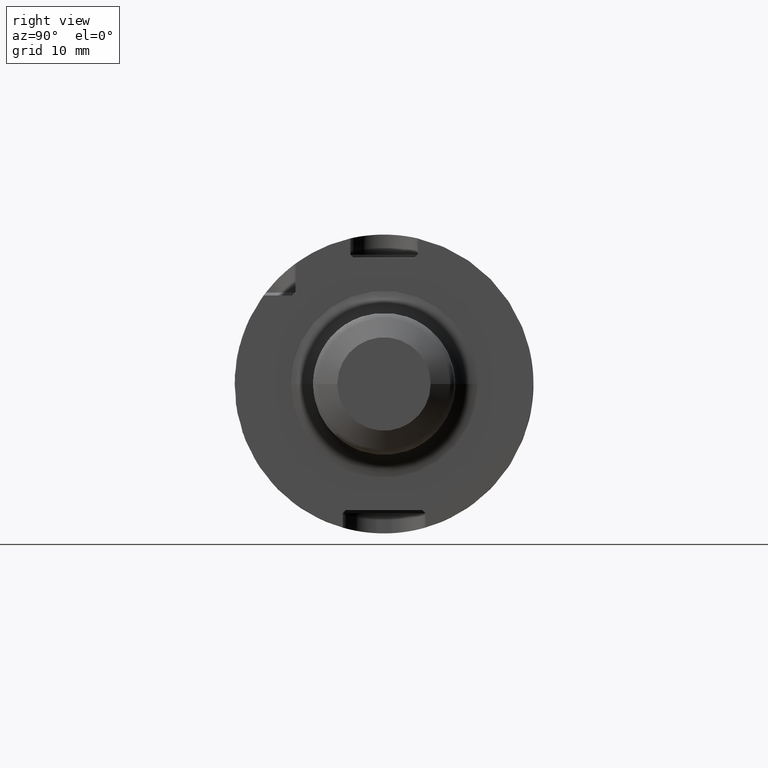
[diagram: clean part render]
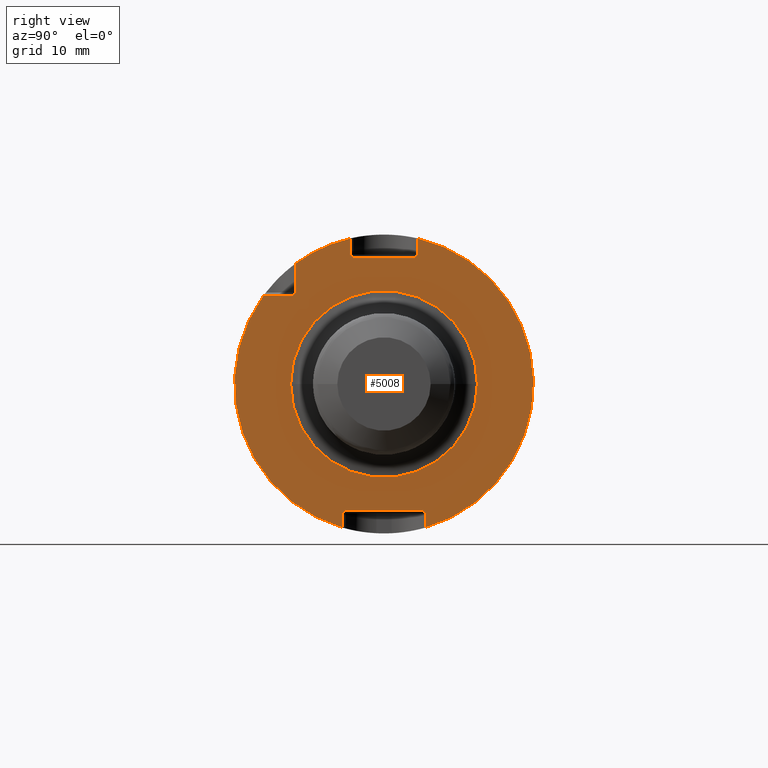
[diagram: same view with one face highlighted and labeled with its STEP entity id]
A machine part, right view. The second image highlights one B-rep face of the part: STEP entity #5008.
In plain terms, the highlighted planar face has unit normal (1, 0, 0).
Its self-contained STEP definition (entity closure, byte-faithful):
#994=CARTESIAN_POINT('',(1.995E1,0.E0,0.E0));
#995=DIRECTION('',(1.E0,0.E0,0.E0));
#996=DIRECTION('',(0.E0,-2.25725E-1,9.741910615352E-1));
#997=AXIS2_PLACEMENT_3D('',#994,#995,#996);
#1003=CARTESIAN_POINT('',(1.995E1,0.E0,0.E0));
#1004=DIRECTION('',(1.E0,0.E0,0.E0));
#1005=DIRECTION('',(0.E0,-8.055704500539E-1,5.925E-1));
#1006=AXIS2_PLACEMENT_3D('',#1003,#1004,#1005);
#1030=CARTESIAN_POINT('',(1.995E1,0.E0,0.E0));
#1031=DIRECTION('',(1.E0,0.E0,0.E0));
#1032=DIRECTION('',(0.E0,2.75875E-1,-9.611935207725E-1));
#1033=AXIS2_PLACEMENT_3D('',#1030,#1031,#1032);
#1211=DIRECTION('',(0.E0,-7.071067811865E-1,7.071067811865E-1));
#1212=VECTOR('',#1211,5.656854249492E-1);
#1213=CARTESIAN_POINT('',(1.995E1,-4.1145E0,1.69E1));
#1214=LINE('',#1213,#1212);
#1368=DIRECTION('',(0.E0,7.071067811865E-1,-7.071067811865E-1));
#1369=VECTOR('',#1368,5.656854249492E-1);
#1370=CARTESIAN_POINT('',(1.995E1,5.1175E0,-1.69E1));
#1371=LINE('',#1370,#1369);
#1474=DIRECTION('',(0.E0,-7.071067811865E-1,-7.071067811865E-1));
#1475=VECTOR('',#1474,5.656854249492E-1);
#1476=CARTESIAN_POINT('',(1.995E1,4.5145E0,1.73E1));
#1477=LINE('',#1476,#1475);
#1641=DIRECTION('',(0.E0,1.E0,0.E0));
#1642=VECTOR('',#1641,3.861409001077E0);
#1643=CARTESIAN_POINT('',(1.995E1,-1.611140900108E1,1.185E1));
#1644=LINE('',#1643,#1642);
#1645=DIRECTION('',(0.E0,0.E0,-1.E0));
#1646=VECTOR('',#1645,3.861409001077E0);
#1647=CARTESIAN_POINT('',(1.995E1,-1.185E1,1.611140900108E1));
#1648=LINE('',#1647,#1646);
#1649=DIRECTION('',(0.E0,0.E0,-1.E0));
#1650=VECTOR('',#1649,2.183821230703E0);
#1651=CARTESIAN_POINT('',(1.995E1,-4.5145E0,1.948382123070E1));
#1652=LINE('',#1651,#1650);
#1653=DIRECTION('',(0.E0,1.E0,0.E0));
#1654=VECTOR('',#1653,8.229E0);
#1655=CARTESIAN_POINT('',(1.995E1,-4.1145E0,1.69E1));
#1656=LINE('',#1655,#1654);
#1657=DIRECTION('',(0.E0,0.E0,-1.E0));
#1658=VECTOR('',#1657,2.183821230703E0);
#1659=CARTESIAN_POINT('',(1.995E1,4.5145E0,1.948382123070E1));
#1660=LINE('',#1659,#1658);
#1661=DIRECTION('',(0.E0,0.E0,1.E0));
#1662=VECTOR('',#1661,1.923870415450E0);
#1663=CARTESIAN_POINT('',(1.995E1,5.5175E0,-1.922387041545E1));
#1664=LINE('',#1663,#1662);
#1665=DIRECTION('',(0.E0,-1.E0,0.E0));
#1666=VECTOR('',#1665,1.0235E1);
#1667=CARTESIAN_POINT('',(1.995E1,5.1175E0,-1.69E1));
#1668=LINE('',#1667,#1666);
#1669=DIRECTION('',(0.E0,0.E0,1.E0));
#1670=VECTOR('',#1669,1.923870415450E0);
#1671=CARTESIAN_POINT('',(1.995E1,-5.5175E0,-1.922387041545E1));
#1672=LINE('',#1671,#1670);
#1673=CARTESIAN_POINT('',(1.995E1,0.E0,0.E0));
#1674=DIRECTION('',(1.E0,0.E0,0.E0));
#1675=DIRECTION('',(0.E0,-1.E0,0.E0));
#1676=AXIS2_PLACEMENT_3D('',#1673,#1674,#1675);
#1678=CARTESIAN_POINT('',(1.995E1,0.E0,0.E0));
#1679=DIRECTION('',(1.E0,0.E0,0.E0));
#1680=DIRECTION('',(0.E0,1.E0,0.E0));
#1681=AXIS2_PLACEMENT_3D('',#1678,#1679,#1680);
#1753=DIRECTION('',(0.E0,-7.071067811865E-1,-7.071067811865E-1));
#1754=VECTOR('',#1753,5.656854249492E-1);
#1755=CARTESIAN_POINT('',(1.995E1,-1.185E1,1.225E1));
#1756=LINE('',#1755,#1754);
#1769=DIRECTION('',(0.E0,7.071067811865E-1,7.071067811865E-1));
#1770=VECTOR('',#1769,5.656854249492E-1);
#1771=CARTESIAN_POINT('',(1.995E1,-5.5175E0,-1.73E1));
#1772=LINE('',#1771,#1770);
#3032=CARTESIAN_POINT('',(1.995E1,-4.1145E0,1.69E1));
#3033=CARTESIAN_POINT('',(1.995E1,-4.5145E0,1.73E1));
#3034=VERTEX_POINT('',#3032);
#3035=VERTEX_POINT('',#3033);
#3036=CARTESIAN_POINT('',(1.995E1,4.5145E0,1.73E1));
#3037=CARTESIAN_POINT('',(1.995E1,4.1145E0,1.69E1));
#3038=VERTEX_POINT('',#3036);
#3039=VERTEX_POINT('',#3037);
#3064=CARTESIAN_POINT('',(1.995E1,5.1175E0,-1.69E1));
#3065=CARTESIAN_POINT('',(1.995E1,5.5175E0,-1.73E1));
#3066=VERTEX_POINT('',#3064);
#3067=VERTEX_POINT('',#3065);
#3068=CARTESIAN_POINT('',(1.995E1,-5.5175E0,-1.73E1));
#3069=CARTESIAN_POINT('',(1.995E1,-5.1175E0,-1.69E1));
#3070=VERTEX_POINT('',#3068);
#3071=VERTEX_POINT('',#3069);
#3073=CARTESIAN_POINT('',(1.995E1,-1.225E1,1.185E1));
#3075=VERTEX_POINT('',#3073);
#3077=CARTESIAN_POINT('',(1.995E1,-1.185E1,1.225E1));
#3079=VERTEX_POINT('',#3077);
#3110=CARTESIAN_POINT('',(1.995E1,-1.611140900108E1,1.185E1));
#3111=VERTEX_POINT('',#3110);
#3112=CARTESIAN_POINT('',(1.995E1,-1.185E1,1.611140900108E1));
#3113=VERTEX_POINT('',#3112);
#3150=CARTESIAN_POINT('',(1.995E1,4.5145E0,1.948382123070E1));
#3151=VERTEX_POINT('',#3150);
#3152=CARTESIAN_POINT('',(1.995E1,-5.5175E0,-1.922387041545E1));
#3153=VERTEX_POINT('',#3152);
#3154=CARTESIAN_POINT('',(1.995E1,-4.5145E0,1.948382123070E1));
#3155=VERTEX_POINT('',#3154);
#3156=CARTESIAN_POINT('',(1.995E1,5.5175E0,-1.922387041545E1));
#3157=VERTEX_POINT('',#3156);
#3220=CARTESIAN_POINT('',(1.995E1,-1.25E1,0.E0));
#3221=CARTESIAN_POINT('',(1.995E1,1.25E1,0.E0));
#3222=VERTEX_POINT('',#3220);
#3223=VERTEX_POINT('',#3221);
#4975=CARTESIAN_POINT('',(1.995E1,0.E0,0.E0));
#4976=DIRECTION('',(1.E0,0.E0,0.E0));
#4977=DIRECTION('',(0.E0,-1.E0,0.E0));
#4978=AXIS2_PLACEMENT_3D('',#4975,#4976,#4977);
#4979=PLANE('',#4978);
#4981=ORIENTED_EDGE('',*,*,#4980,.T.);
#4983=ORIENTED_EDGE('',*,*,#4982,.F.);
#4984=ORIENTED_EDGE('',*,*,#4964,.F.);
#4985=ORIENTED_EDGE('',*,*,#4307,.F.);
#4986=ORIENTED_EDGE('',*,*,#4501,.T.);
#4987=ORIENTED_EDGE('',*,*,#4592,.F.);
#4988=ORIENTED_EDGE('',*,*,#4856,.T.);
#4989=ORIENTED_EDGE('',*,*,#4838,.F.);
#4990=ORIENTED_EDGE('',*,*,#4807,.F.);
#4991=ORIENTED_EDGE('',*,*,#4339,.F.);
#4992=ORIENTED_EDGE('',*,*,#4735,.T.);
#4993=ORIENTED_EDGE('',*,*,#4706,.F.);
#4994=ORIENTED_EDGE('',*,*,#4673,.T.);
#4996=ORIENTED_EDGE('',*,*,#4995,.F.);
#4998=ORIENTED_EDGE('',*,*,#4997,.F.);
#4999=ORIENTED_EDGE('',*,*,#4319,.F.);
#5000=EDGE_LOOP('',(#4981,#4983,#4984,#4985,#4986,#4987,#4988,#4989,#4990,#4991,
#4992,#4993,#4994,#4996,#4998,#4999));
#5001=FACE_OUTER_BOUND('',#5000,.F.);
#5003=ORIENTED_EDGE('',*,*,#5002,.T.);
#5005=ORIENTED_EDGE('',*,*,#5004,.T.);
#5006=EDGE_LOOP('',(#5003,#5005));
#5007=FACE_BOUND('',#5006,.F.);
#5008=ADVANCED_FACE('',(#5001,#5007),#4979,.T.);
#998=CIRCLE('',#997,2.E1);
#1007=CIRCLE('',#1006,2.E1);
#1034=CIRCLE('',#1033,2.E1);
#1677=CIRCLE('',#1676,1.25E1);
#1682=CIRCLE('',#1681,1.25E1);
#4307=EDGE_CURVE('',#3155,#3113,#998,.T.);
#4319=EDGE_CURVE('',#3111,#3153,#1007,.T.);
#4339=EDGE_CURVE('',#3157,#3151,#1034,.T.);
#4501=EDGE_CURVE('',#3155,#3035,#1652,.T.);
#4592=EDGE_CURVE('',#3034,#3035,#1214,.T.);
#4673=EDGE_CURVE('',#3066,#3071,#1668,.T.);
#4706=EDGE_CURVE('',#3066,#3067,#1371,.T.);
#4735=EDGE_CURVE('',#3157,#3067,#1664,.T.);
#4807=EDGE_CURVE('',#3151,#3038,#1660,.T.);
#4838=EDGE_CURVE('',#3038,#3039,#1477,.T.);
#4856=EDGE_CURVE('',#3034,#3039,#1656,.T.);
#4964=EDGE_CURVE('',#3113,#3079,#1648,.T.);
#4980=EDGE_CURVE('',#3111,#3075,#1644,.T.);
#4982=EDGE_CURVE('',#3079,#3075,#1756,.T.);
#4995=EDGE_CURVE('',#3070,#3071,#1772,.T.);
#4997=EDGE_CURVE('',#3153,#3070,#1672,.T.);
#5002=EDGE_CURVE('',#3222,#3223,#1677,.T.);
#5004=EDGE_CURVE('',#3223,#3222,#1682,.T.);